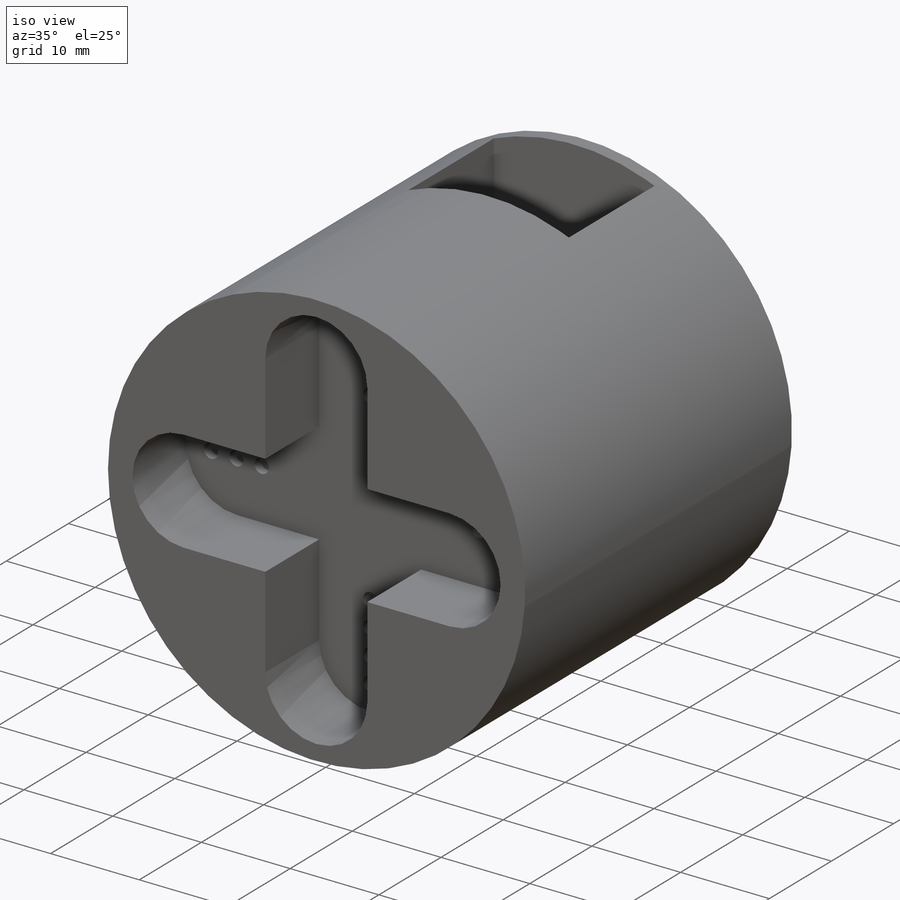
[diagram: iso view]
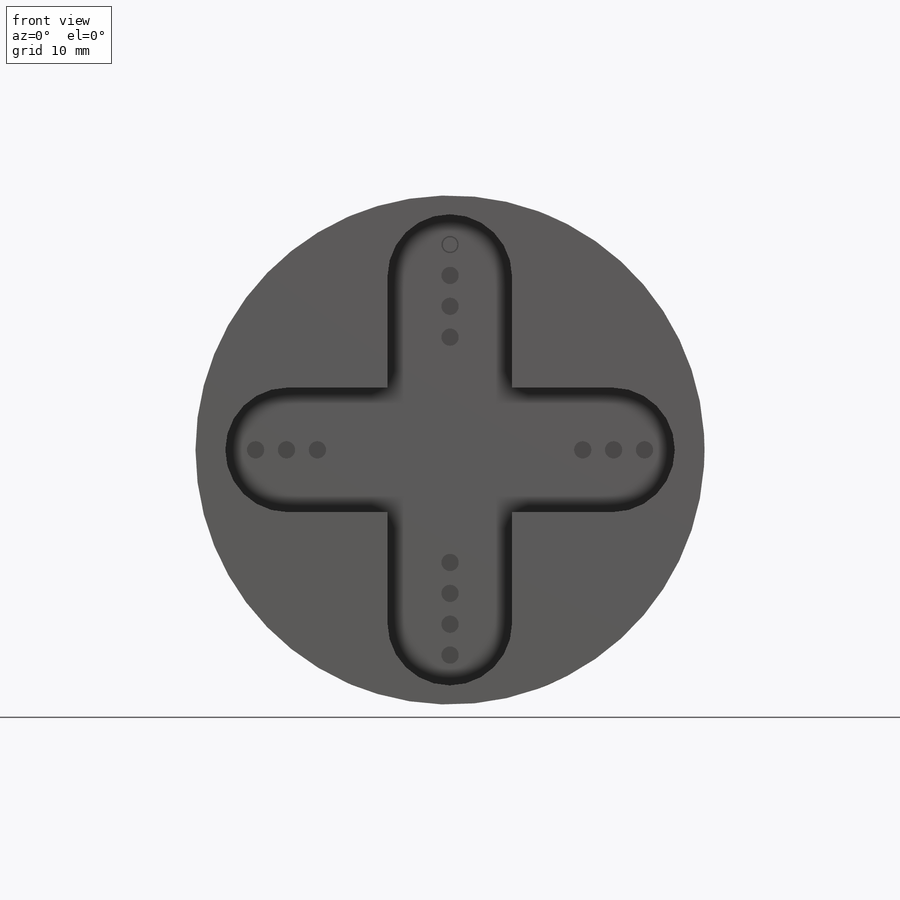
[diagram: front view]
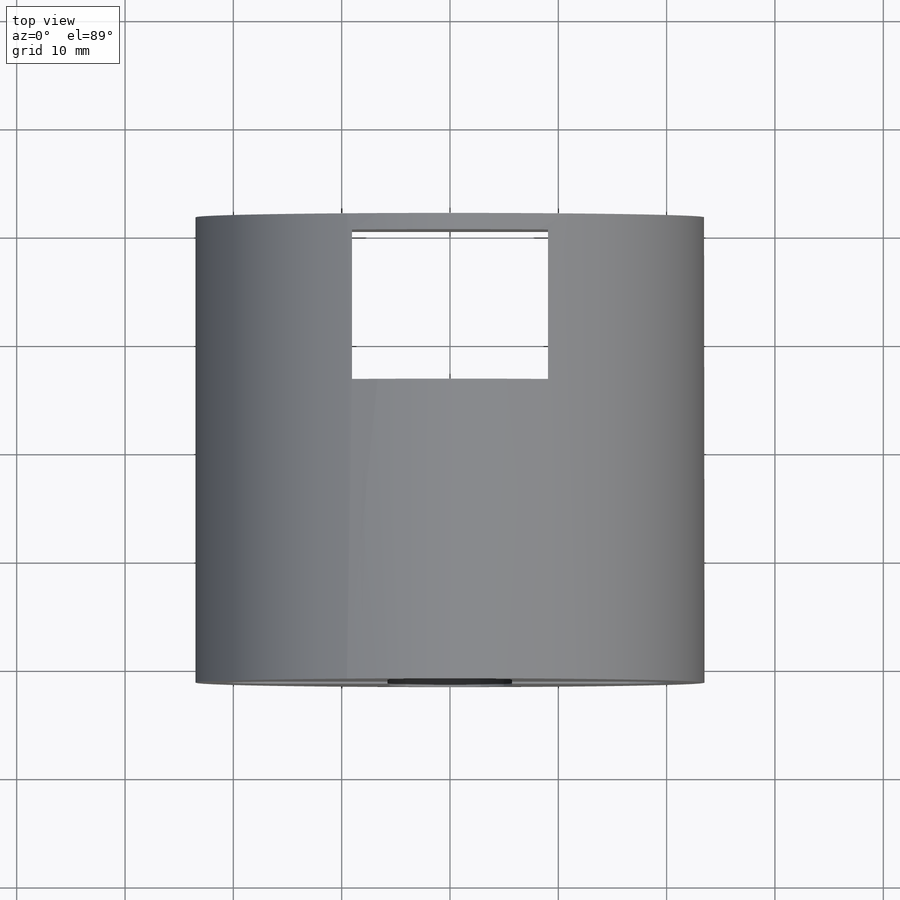
[diagram: top view]
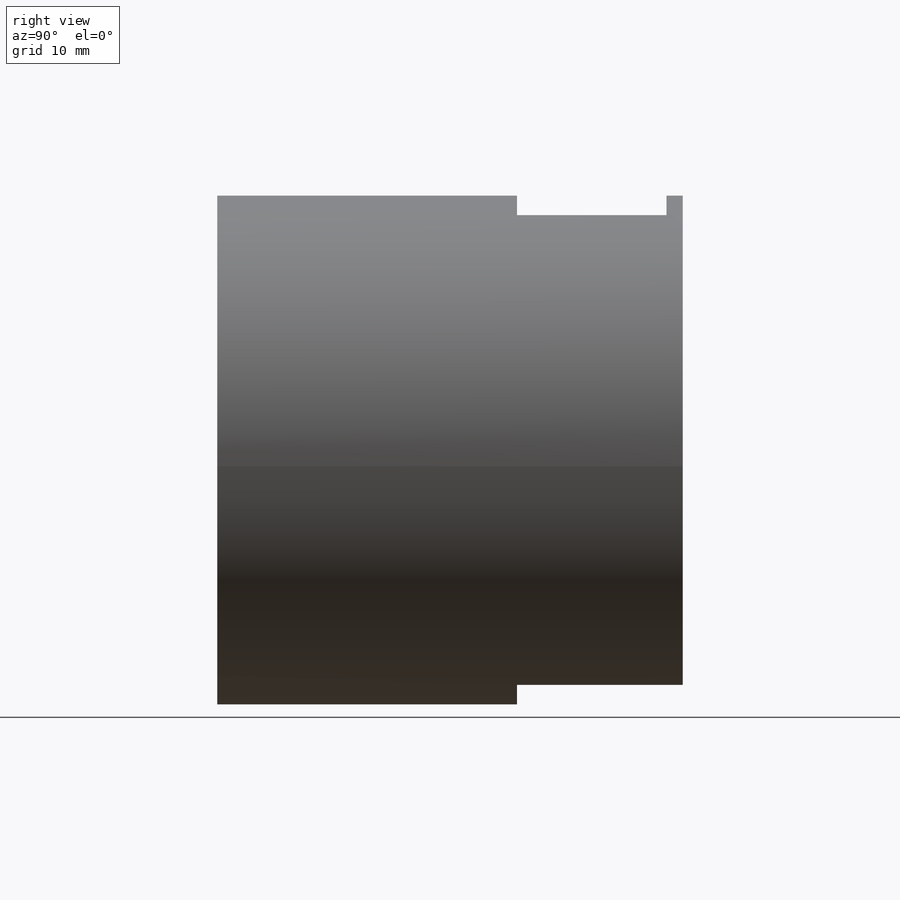
[diagram: right view]
SOLIDWORKS PART (.sldprt)
format: sldprt  version: not decoded by parser v0  size: 300,032 bytes
history: native  units: mm
features: sketch x7, cut_extrude x4, extrude x2, material x1 (+12 scaffold rows collapsed)
feature tree (26):
  scaffold x12  (default folders/planes/origin — collapsed)
  material  "Material <not specified>"
  sketch  "Sketch1"  dims[D1=47.0mm]
  extrude  "Boss-Extrude1"  Depth=41.47mm
  sketch  "Sketch5"  dims[D6=1.0mm D8=1.0mm D1=47.0mm D2=23.5mm D3=18.1mm D4=9.05mm D5=0.0mm D7=~13.064413mm]
  cut_extrude  "Cut-Extrude1"  Depth=13.8mm
  sketch  "Sketch6"  dims[D1=47.0mm]
  extrude  "Boss-Extrude2"  Depth=1.5mm
  sketch  "Sketch8"  dims[D2=8.2mm D1=0.0mm]
  cut_extrude  "Cut-Extrude5"  Depth=1.5mm
  sketch  "Sketch9"  dims[c1.D1=11.5mm c1.D5=~3.550253mm c2.D1=32.0mm c2.D2=30.0mm c2.D3=16.0mm c2.D4=15.0mm]
  cut_extrude  "Cut-Extrude10"  Depth=8.67mm
  sketch  "Sketch13"  dims[D1=~2.587913mm]
  sketch  "Sketch14"  dims[D1=2.8mm D2=2.8mm D3=2.8mm D4=2.8mm D5=2.85mm D6=2.85mm D7=2.85mm D8=2.85mm D9=2.85mm D10=2.85mm D11=2.85mm D12=2.85mm D13=2.85mm D14=2.85mm D15=~20.299996mm D16=~42.999996mm]
  cut_extrude  "Cut-Extrude12"  Depth=1mm
decode coverage: 13 of 13 modeling features carry decoded parameters
note: ~ marks probable driven/reference dimensions
note: suppression state not decoded; provenance and decode notes live in map.json
